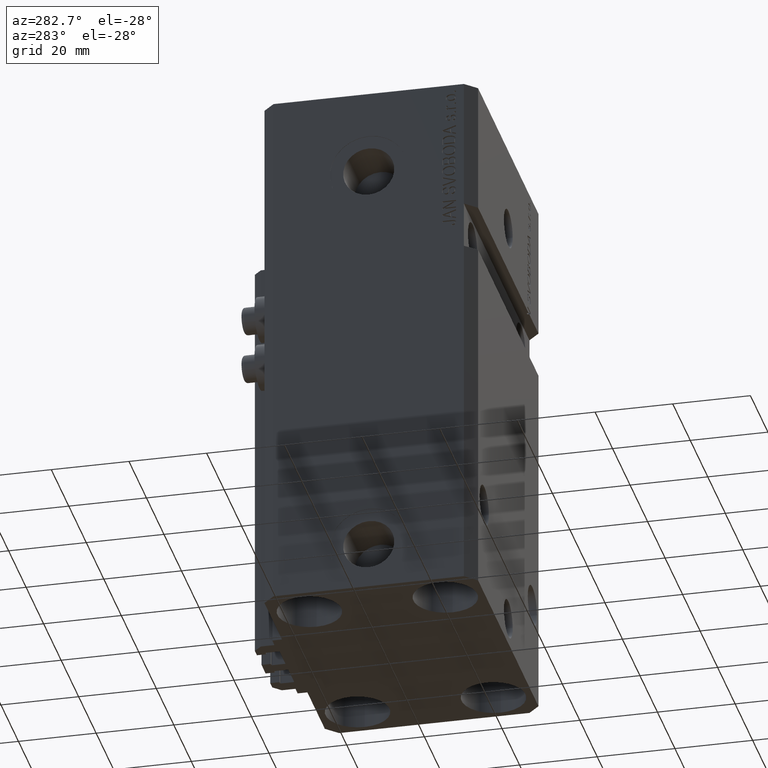
[diagram: clean part render]
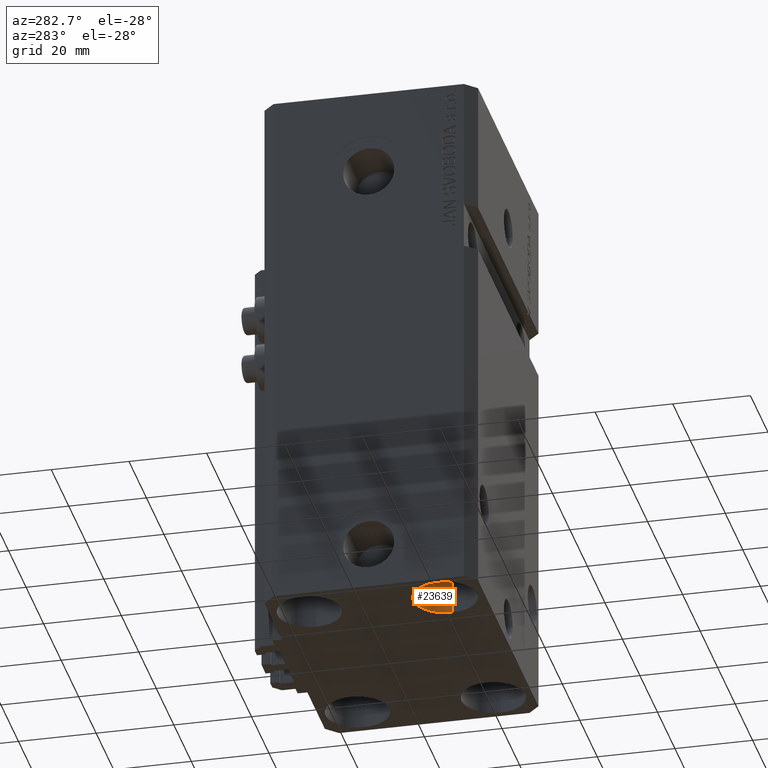
[diagram: same view with one face highlighted and labeled with its STEP entity id]
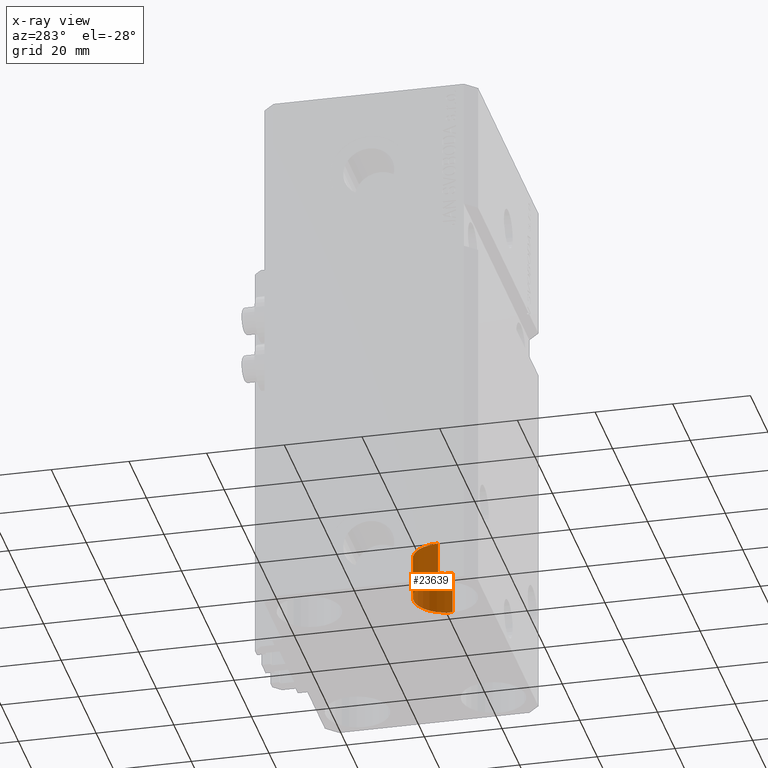
[diagram: x-ray of the same camera — body ghosted, the highlighted face saturated]
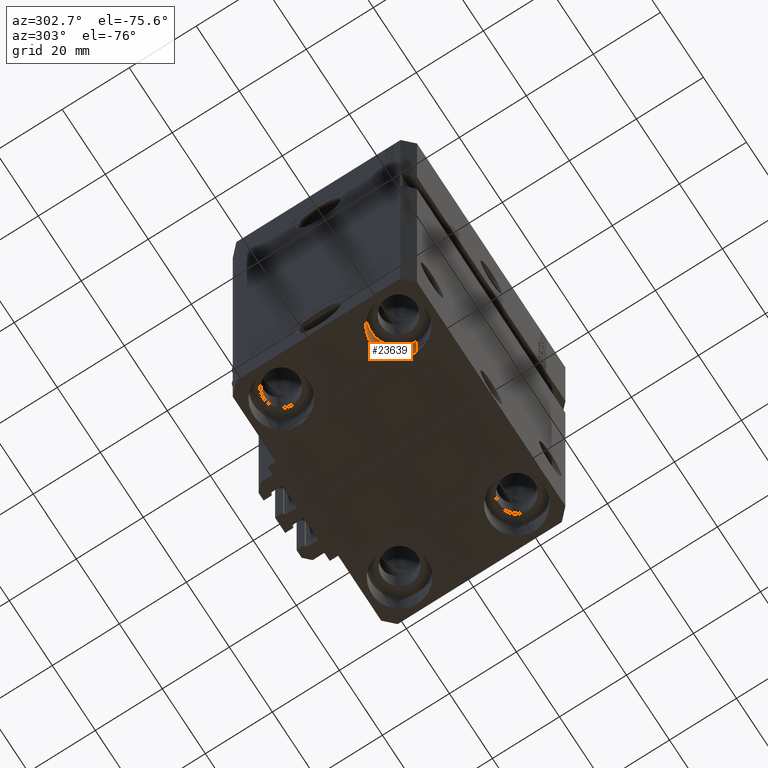
[diagram: same view with one face highlighted and labeled with its STEP entity id]
A machine part, auxiliary view. The second image highlights one B-rep face of the part: STEP entity #23639.
The next image is the same camera in x-ray: the body ghosted, the highlighted face saturated — about 0% of this face is hidden behind the body in this view.
A second angle (auxiliary view) of the same face is appended — the face is thin or edge-on in the first view.
In plain terms, the highlighted cylindrical surface (edge-blend (fillet) strip) has radius 8.25 mm, axis along (-0, -0, -1).
Its self-contained STEP definition (entity closure, byte-faithful):
#707 = AXIS2_PLACEMENT_3D ( 'NONE', #16727, #16022, #1420 ) ;
#877 = VERTEX_POINT ( 'NONE', #44846 ) ;
#1309 = CARTESIAN_POINT ( 'NONE',  ( -35.75000000000000711, -17.50000000000000000, -140.0000000000000000 ) ) ;
#1420 = DIRECTION ( 'NONE',  ( 1.000000000000000000, 0.000000000000000000, 0.000000000000000000 ) ) ;
#1769 = CARTESIAN_POINT ( 'NONE',  ( -19.25000000000000355, -17.50000000000000000, -129.0000000000000000 ) ) ;
#11104 = AXIS2_PLACEMENT_3D ( 'NONE', #24190, #35441, #43080 ) ;
#11823 = LINE ( 'NONE', #19736, #37684 ) ;
#12901 = ORIENTED_EDGE ( 'NONE', *, *, #45812, .T. ) ;
#13130 = EDGE_CURVE ( 'NONE', #45885, #877, #38318, .T. ) ;
#16022 = DIRECTION ( 'NONE',  ( -0.000000000000000000, -0.000000000000000000, 1.000000000000000000 ) ) ;
#16727 = CARTESIAN_POINT ( 'NONE',  ( -27.50000000000000355, -17.50000000000000000, -140.0000000000000000 ) ) ;
#19736 = CARTESIAN_POINT ( 'NONE',  ( -35.75000000000000711, -17.50000000000000000, -129.0000000000000000 ) ) ;
#22052 = EDGE_LOOP ( 'NONE', ( #38804, #27782, #12901, #22114 ) ) ;
#22114 = ORIENTED_EDGE ( 'NONE', *, *, #35541, .F. ) ;
#23051 = LINE ( 'NONE', #38767, #43468 ) ;
#23639 = ADVANCED_FACE ( 'NONE', ( #46201 ), #24905, .F. ) ;
#24190 = CARTESIAN_POINT ( 'NONE',  ( -27.50000000000000355, -17.50000000000000000, -129.0000000000000000 ) ) ;
#24905 = CYLINDRICAL_SURFACE ( 'NONE', #11104, 8.250000000000000000 ) ;
#27782 = ORIENTED_EDGE ( 'NONE', *, *, #13130, .T. ) ;
#28258 = DIRECTION ( 'NONE',  ( -0.000000000000000000, -0.000000000000000000, -1.000000000000000000 ) ) ;
#29335 = CARTESIAN_POINT ( 'NONE',  ( -27.50000000000000355, -17.50000000000000000, -129.0000000000000000 ) ) ;
#31980 = DIRECTION ( 'NONE',  ( -0.000000000000000000, -0.000000000000000000, 1.000000000000000000 ) ) ;
#33517 = EDGE_CURVE ( 'NONE', #45885, #38593, #23051, .T. ) ;
#34345 = DIRECTION ( 'NONE',  ( -0.000000000000000000, -0.000000000000000000, -1.000000000000000000 ) ) ;
#35298 = CARTESIAN_POINT ( 'NONE',  ( -19.25000000000000355, -17.50000000000000000, -140.0000000000000000 ) ) ;
#35441 = DIRECTION ( 'NONE',  ( -0.000000000000000000, -0.000000000000000000, -1.000000000000000000 ) ) ;
#35541 = EDGE_CURVE ( 'NONE', #38593, #36187, #36668, .T. ) ;
#36187 = VERTEX_POINT ( 'NONE', #1309 ) ;
#36668 = CIRCLE ( 'NONE', #707, 8.250000000000000000 ) ;
#37684 = VECTOR ( 'NONE', #34345, 1000.000000000000000 ) ;
#38318 = CIRCLE ( 'NONE', #46766, 8.250000000000000000 ) ;
#38593 = VERTEX_POINT ( 'NONE', #35298 ) ;
#38767 = CARTESIAN_POINT ( 'NONE',  ( -19.25000000000000355, -17.50000000000000000, -129.0000000000000000 ) ) ;
#38804 = ORIENTED_EDGE ( 'NONE', *, *, #33517, .F. ) ;
#43080 = DIRECTION ( 'NONE',  ( -1.000000000000000000, 0.000000000000000000, 0.000000000000000000 ) ) ;
#43468 = VECTOR ( 'NONE', #28258, 1000.000000000000000 ) ;
#43909 = DIRECTION ( 'NONE',  ( 1.000000000000000000, 0.000000000000000000, 0.000000000000000000 ) ) ;
#44846 = CARTESIAN_POINT ( 'NONE',  ( -35.75000000000000711, -17.50000000000000000, -129.0000000000000000 ) ) ;
#45812 = EDGE_CURVE ( 'NONE', #877, #36187, #11823, .T. ) ;
#45885 = VERTEX_POINT ( 'NONE', #1769 ) ;
#46201 = FACE_OUTER_BOUND ( 'NONE', #22052, .T. ) ;
#46766 = AXIS2_PLACEMENT_3D ( 'NONE', #29335, #31980, #43909 ) ;